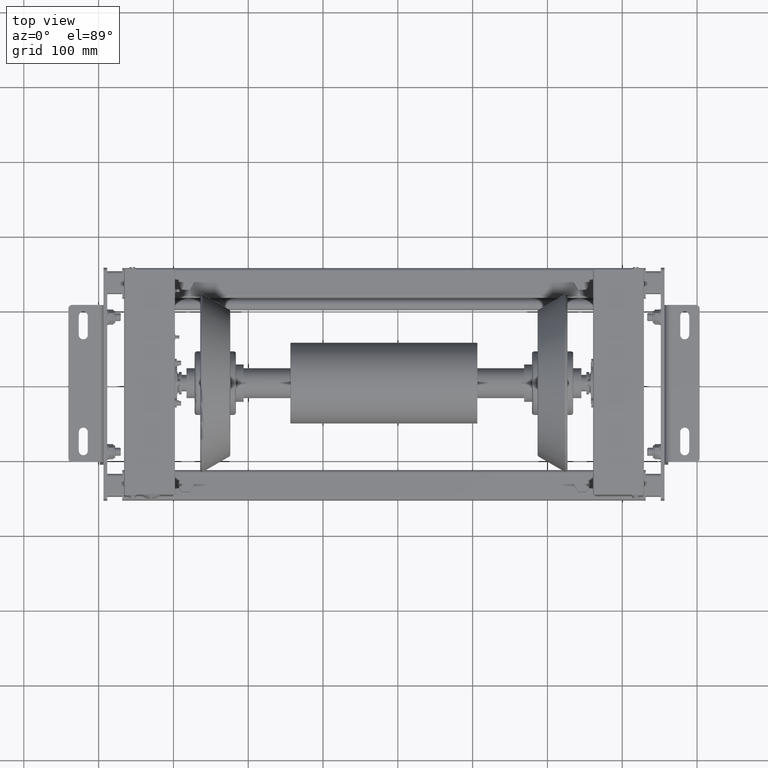
[diagram: clean part render]
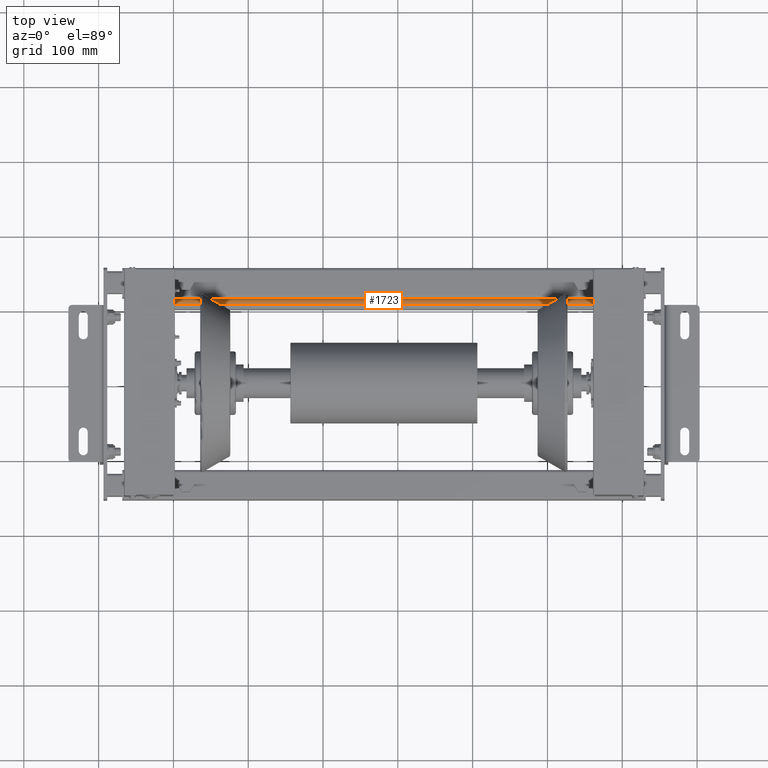
[diagram: same view with one face highlighted and labeled with its STEP entity id]
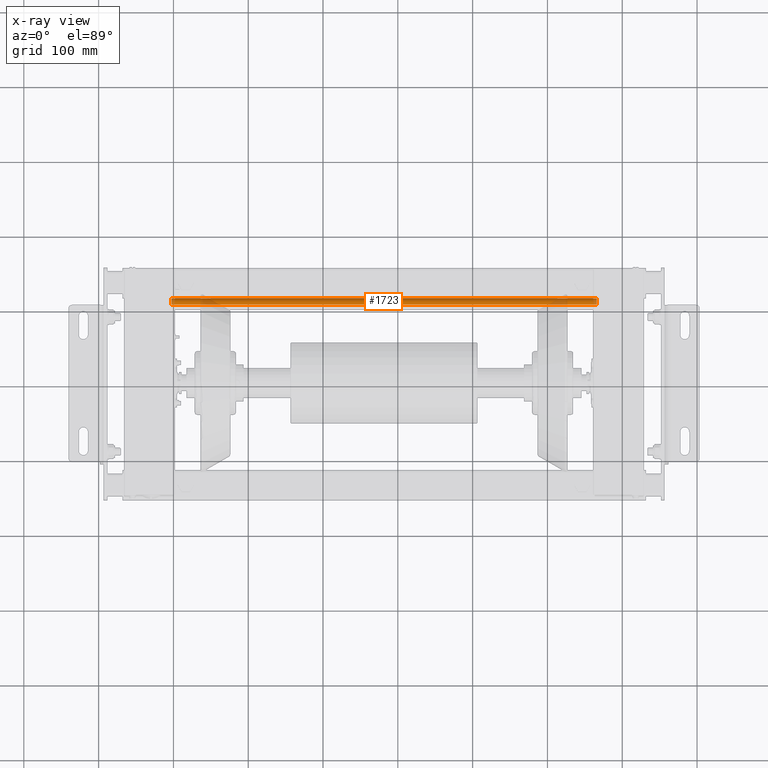
[diagram: x-ray of the same camera — body ghosted, the highlighted face saturated]
A machine part, top view. The second image highlights one B-rep face of the part: STEP entity #1723.
The next image is the same camera in x-ray: the body ghosted, the highlighted face saturated — about 8% of this face is hidden behind the body in this view.
In plain terms, the highlighted cylindrical surface (edge-blend (fillet) strip) has radius 8 mm, axis along (1, 0, -0).
Its self-contained STEP definition (entity closure, byte-faithful):
#1663=CARTESIAN_POINT('',(8.0,0.0,244.0));
#1664=VERTEX_POINT('',#1663);
#1665=CARTESIAN_POINT('',(8.0,0.0,-325.0));
#1666=VERTEX_POINT('',#1665);
#1667=CARTESIAN_POINT('',(8.0,0.0,244.0));
#1668=DIRECTION('',(0.0,0.0,-1.0));
#1669=VECTOR('',#1668,569.0);
#1670=LINE('',#1667,#1669);
#1671=EDGE_CURVE('',#1664,#1666,#1670,.T.);
#1673=CARTESIAN_POINT('',(-8.0,-9.797174E-016,244.0));
#1674=VERTEX_POINT('',#1673);
#1682=CARTESIAN_POINT('',(-8.0,-9.797174E-016,-325.0));
#1683=VERTEX_POINT('',#1682);
#1684=CARTESIAN_POINT('',(-8.0,-9.797174E-016,244.0));
#1685=DIRECTION('',(0.0,0.0,-1.0));
#1686=VECTOR('',#1685,569.0);
#1687=LINE('',#1684,#1686);
#1688=EDGE_CURVE('',#1674,#1683,#1687,.T.);
#1700=CARTESIAN_POINT('',(0.0,0.0,-325.0));
#1701=DIRECTION('',(0.0,0.0,1.0));
#1702=DIRECTION('',(1.0,0.0,0.0));
#1703=AXIS2_PLACEMENT_3D('',#1700,#1701,#1702);
#1704=CYLINDRICAL_SURFACE('',#1703,8.0);
#1705=ORIENTED_EDGE('',*,*,#1671,.T.);
#1706=CARTESIAN_POINT('',(0.0,0.0,-325.0));
#1707=DIRECTION('',(0.0,0.0,1.0));
#1708=DIRECTION('',(1.0,0.0,0.0));
#1709=AXIS2_PLACEMENT_3D('',#1706,#1707,#1708);
#1710=CIRCLE('',#1709,8.0);
#1711=EDGE_CURVE('',#1666,#1683,#1710,.T.);
#1712=ORIENTED_EDGE('',*,*,#1711,.T.);
#1713=ORIENTED_EDGE('',*,*,#1688,.F.);
#1714=CARTESIAN_POINT('',(0.0,0.0,244.0));
#1715=DIRECTION('',(0.0,0.0,-1.0));
#1716=DIRECTION('',(1.0,0.0,0.0));
#1717=AXIS2_PLACEMENT_3D('',#1714,#1715,#1716);
#1718=CIRCLE('',#1717,8.0);
#1719=EDGE_CURVE('',#1674,#1664,#1718,.T.);
#1720=ORIENTED_EDGE('',*,*,#1719,.T.);
#1721=EDGE_LOOP('',(#1705,#1712,#1713,#1720));
#1722=FACE_OUTER_BOUND('',#1721,.T.);
#1723=ADVANCED_FACE('',(#1722),#1704,.T.);